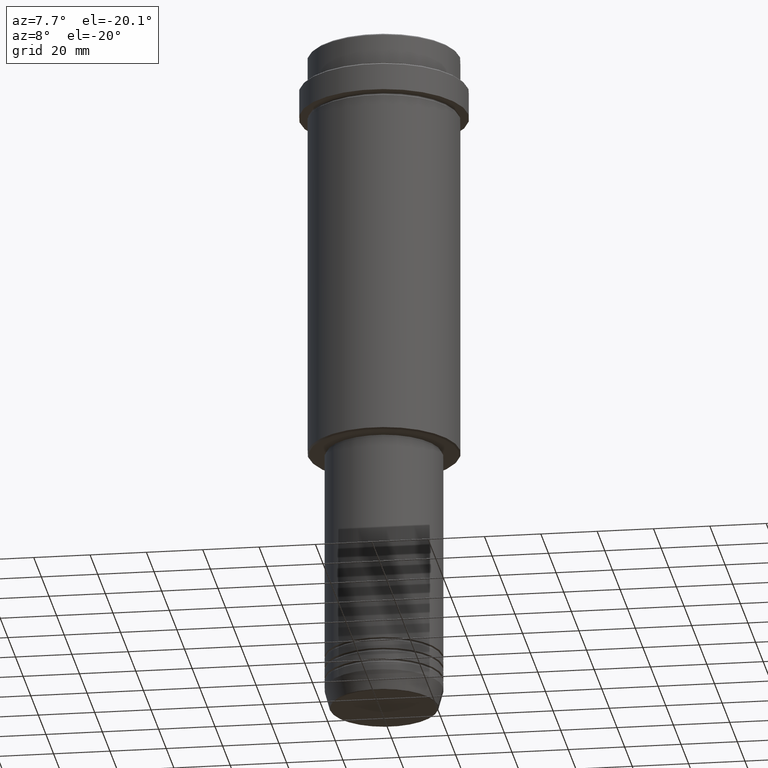
[diagram: clean part render]
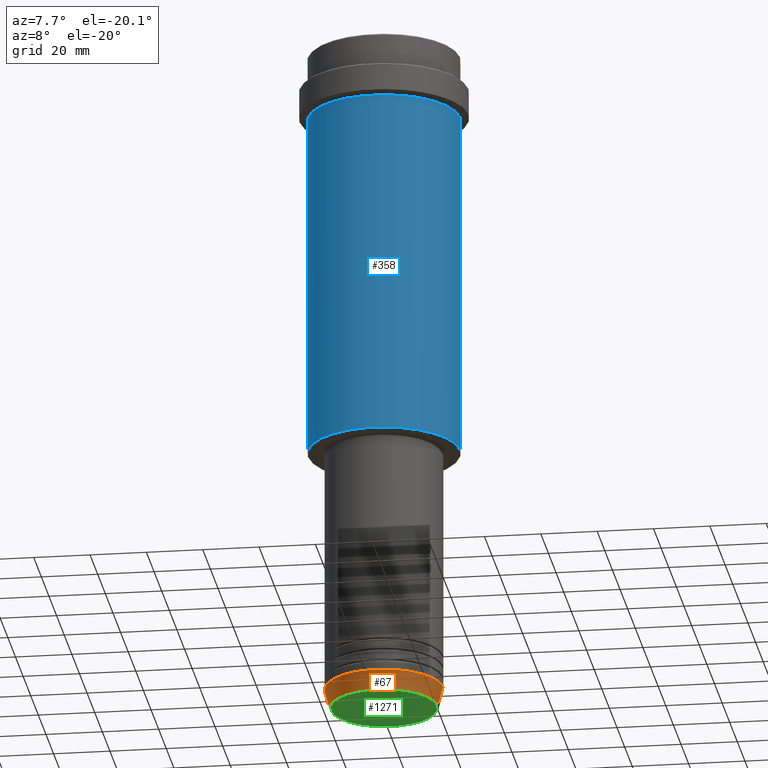
[diagram: same view with three faces highlighted in distinct colors, each labeled with its STEP entity id]
A machine part, auxiliary view with three faces highlighted in distinct colors.
Their STEP definitions:

[orange] entity #67 — the highlighted conical surface has half-angle 15 deg.
#21 = ORIENTED_EDGE ( 'NONE', *, *, #1041, .F. ) ;
#67 = ADVANCED_FACE ( 'NONE', ( #890 ), #712, .T. ) ;
#176 = VERTEX_POINT ( 'NONE', #1004 ) ;
#179 = EDGE_CURVE ( 'NONE', #1120, #1187, #1020, .T. ) ;
#184 = EDGE_LOOP ( 'NONE', ( #998, #1231, #1094, #21 ) ) ;
#288 = DIRECTION ( 'NONE',  ( 1.000000000000000000, 0.000000000000000000, 0.000000000000000000 ) ) ;
#395 = CARTESIAN_POINT ( 'NONE',  ( -21.00000000000000000, 2.571758278209441661E-15, -236.0000000000000284 ) ) ;
#410 = AXIS2_PLACEMENT_3D ( 'NONE', #1412, #418, #1204 ) ;
#418 = DIRECTION ( 'NONE',  ( -0.000000000000000000, -0.000000000000000000, 1.000000000000000000 ) ) ;
#463 = DIRECTION ( 'NONE',  ( 1.000000000000000000, 0.000000000000000000, 0.000000000000000000 ) ) ;
#466 = EDGE_CURVE ( 'NONE', #176, #1120, #1199, .T. ) ;
#473 = DIRECTION ( 'NONE',  ( 0.2588190451025213501, 0.000000000000000000, 0.9659258262890680902 ) ) ;
#612 = DIRECTION ( 'NONE',  ( -0.2588190451025213501, 3.169619151431772337E-17, 0.9659258262890680902 ) ) ;
#676 = DIRECTION ( 'NONE',  ( -0.000000000000000000, -0.000000000000000000, 1.000000000000000000 ) ) ;
#679 = CARTESIAN_POINT ( 'NONE',  ( 21.00000000000000000, 0.000000000000000000, -236.0000000000000284 ) ) ;
#712 = CONICAL_SURFACE ( 'NONE', #843, 21.00000000000000000, 0.2617993877991500740 ) ;
#809 = CIRCLE ( 'NONE', #410, 21.00000000000000000 ) ;
#843 = AXIS2_PLACEMENT_3D ( 'NONE', #1060, #1163, #288 ) ;
#890 = FACE_OUTER_BOUND ( 'NONE', #184, .T. ) ;
#993 = CARTESIAN_POINT ( 'NONE',  ( 19.22365507213718416, 0.000000000000000000, -242.6294095225512990 ) ) ;
#998 = ORIENTED_EDGE ( 'NONE', *, *, #1295, .F. ) ;
#1004 = CARTESIAN_POINT ( 'NONE',  ( -19.22365507213718416, 2.462988521705000261E-15, -242.6294095225512990 ) ) ;
#1020 = LINE ( 'NONE', #679, #1055 ) ;
#1024 = LINE ( 'NONE', #1252, #1056 ) ;
#1041 = EDGE_CURVE ( 'NONE', #1386, #1187, #809, .T. ) ;
#1055 = VECTOR ( 'NONE', #473, 1000.000000000000000 ) ;
#1056 = VECTOR ( 'NONE', #612, 1000.000000000000000 ) ;
#1060 = CARTESIAN_POINT ( 'NONE',  ( 0.000000000000000000, 0.000000000000000000, -236.0000000000000284 ) ) ;
#1094 = ORIENTED_EDGE ( 'NONE', *, *, #179, .T. ) ;
#1120 = VERTEX_POINT ( 'NONE', #993 ) ;
#1124 = CARTESIAN_POINT ( 'NONE',  ( 21.00000000000000000, 0.000000000000000000, -236.0000000000000284 ) ) ;
#1163 = DIRECTION ( 'NONE',  ( -0.000000000000000000, -0.000000000000000000, 1.000000000000000000 ) ) ;
#1187 = VERTEX_POINT ( 'NONE', #1124 ) ;
#1199 = CIRCLE ( 'NONE', #1244, 19.22365507213718416 ) ;
#1204 = DIRECTION ( 'NONE',  ( 1.000000000000000000, 0.000000000000000000, 0.000000000000000000 ) ) ;
#1221 = CARTESIAN_POINT ( 'NONE',  ( 0.000000000000000000, 0.000000000000000000, -242.6294095225512990 ) ) ;
#1231 = ORIENTED_EDGE ( 'NONE', *, *, #466, .T. ) ;
#1244 = AXIS2_PLACEMENT_3D ( 'NONE', #1221, #676, #463 ) ;
#1252 = CARTESIAN_POINT ( 'NONE',  ( -21.00000000000000000, 2.571758278209441661E-15, -236.0000000000000284 ) ) ;
#1295 = EDGE_CURVE ( 'NONE', #176, #1386, #1024, .T. ) ;
#1386 = VERTEX_POINT ( 'NONE', #395 ) ;
#1412 = CARTESIAN_POINT ( 'NONE',  ( 0.000000000000000000, 0.000000000000000000, -236.0000000000000284 ) ) ;

[blue] entity #358 — the highlighted cylindrical surface (partial cylindrical patch) has radius 27 mm, axis along (-0, -0, 1).
#20 = CARTESIAN_POINT ( 'NONE',  ( 0.000000000000000000, 0.000000000000000000, -147.5000000000000853 ) ) ;
#28 = FACE_OUTER_BOUND ( 'NONE', #970, .T. ) ;
#75 = ORIENTED_EDGE ( 'NONE', *, *, #1133, .F. ) ;
#102 = ORIENTED_EDGE ( 'NONE', *, *, #1286, .T. ) ;
#118 = CARTESIAN_POINT ( 'NONE',  ( -26.99999999999999645, 3.306546357697853339E-15, -23.00000000000000000 ) ) ;
#153 = DIRECTION ( 'NONE',  ( -0.000000000000000000, -0.000000000000000000, 1.000000000000000000 ) ) ;
#158 = EDGE_CURVE ( 'NONE', #751, #818, #1128, .T. ) ;
#177 = CARTESIAN_POINT ( 'NONE',  ( 26.99999999999999645, 0.000000000000000000, 0.000000000000000000 ) ) ;
#200 = CARTESIAN_POINT ( 'NONE',  ( 26.99999999999999645, 0.000000000000000000, -147.5000000000000853 ) ) ;
#238 = CIRCLE ( 'NONE', #624, 26.99999999999999645 ) ;
#358 = ADVANCED_FACE ( 'NONE', ( #28 ), #894, .T. ) ;
#362 = VERTEX_POINT ( 'NONE', #1217 ) ;
#408 = VECTOR ( 'NONE', #1190, 1000.000000000000000 ) ;
#419 = CARTESIAN_POINT ( 'NONE',  ( -26.99999999999999645, 3.306546357697853339E-15, 0.000000000000000000 ) ) ;
#521 = AXIS2_PLACEMENT_3D ( 'NONE', #549, #555, #776 ) ;
#536 = EDGE_CURVE ( 'NONE', #751, #1117, #1379, .T. ) ;
#549 = CARTESIAN_POINT ( 'NONE',  ( 0.000000000000000000, 0.000000000000000000, 0.000000000000000000 ) ) ;
#555 = DIRECTION ( 'NONE',  ( -0.000000000000000000, -0.000000000000000000, 1.000000000000000000 ) ) ;
#624 = AXIS2_PLACEMENT_3D ( 'NONE', #1130, #153, #1007 ) ;
#669 = VECTOR ( 'NONE', #1142, 1000.000000000000000 ) ;
#672 = DIRECTION ( 'NONE',  ( -1.000000000000000000, 0.000000000000000000, 0.000000000000000000 ) ) ;
#751 = VERTEX_POINT ( 'NONE', #1238 ) ;
#776 = DIRECTION ( 'NONE',  ( 1.000000000000000000, 0.000000000000000000, 0.000000000000000000 ) ) ;
#818 = VERTEX_POINT ( 'NONE', #200 ) ;
#865 = ORIENTED_EDGE ( 'NONE', *, *, #536, .F. ) ;
#888 = DIRECTION ( 'NONE',  ( -0.000000000000000000, -0.000000000000000000, 1.000000000000000000 ) ) ;
#894 = CYLINDRICAL_SURFACE ( 'NONE', #521, 26.99999999999999645 ) ;
#970 = EDGE_LOOP ( 'NONE', ( #865, #1123, #102, #75 ) ) ;
#1007 = DIRECTION ( 'NONE',  ( 1.000000000000000000, 0.000000000000000000, 0.000000000000000000 ) ) ;
#1117 = VERTEX_POINT ( 'NONE', #118 ) ;
#1123 = ORIENTED_EDGE ( 'NONE', *, *, #158, .T. ) ;
#1128 = CIRCLE ( 'NONE', #1285, 26.99999999999999645 ) ;
#1130 = CARTESIAN_POINT ( 'NONE',  ( 0.000000000000000000, 0.000000000000000000, -23.00000000000000000 ) ) ;
#1133 = EDGE_CURVE ( 'NONE', #1117, #362, #238, .T. ) ;
#1142 = DIRECTION ( 'NONE',  ( -0.000000000000000000, -0.000000000000000000, 1.000000000000000000 ) ) ;
#1157 = LINE ( 'NONE', #177, #669 ) ;
#1190 = DIRECTION ( 'NONE',  ( -0.000000000000000000, -0.000000000000000000, 1.000000000000000000 ) ) ;
#1217 = CARTESIAN_POINT ( 'NONE',  ( 26.99999999999999645, 0.000000000000000000, -23.00000000000000000 ) ) ;
#1238 = CARTESIAN_POINT ( 'NONE',  ( -26.99999999999999645, 3.306546357697853339E-15, -147.5000000000000853 ) ) ;
#1285 = AXIS2_PLACEMENT_3D ( 'NONE', #20, #888, #672 ) ;
#1286 = EDGE_CURVE ( 'NONE', #818, #362, #1157, .T. ) ;
#1379 = LINE ( 'NONE', #419, #408 ) ;

[green] entity #1271 — the highlighted planar face has unit normal (0, -0, 1).
#61 = AXIS2_PLACEMENT_3D ( 'NONE', #282, #1357, #1263 ) ;
#68 = FACE_OUTER_BOUND ( 'NONE', #336, .T. ) ;
#117 = VERTEX_POINT ( 'NONE', #844 ) ;
#282 = CARTESIAN_POINT ( 'NONE',  ( 0.000000000000000000, 0.000000000000000000, -243.0000000000000284 ) ) ;
#336 = EDGE_LOOP ( 'NONE', ( #641, #1066 ) ) ;
#389 = PLANE ( 'NONE',  #61 ) ;
#406 = CIRCLE ( 'NONE', #896, 18.74069215899265473 ) ;
#416 = CARTESIAN_POINT ( 'NONE',  ( 0.000000000000000000, 0.000000000000000000, -243.0000000000000284 ) ) ;
#454 = EDGE_CURVE ( 'NONE', #117, #754, #406, .T. ) ;
#471 = DIRECTION ( 'NONE',  ( 0.000000000000000000, 0.000000000000000000, -1.000000000000000000 ) ) ;
#482 = CIRCLE ( 'NONE', #1059, 18.74069215899265473 ) ;
#514 = DIRECTION ( 'NONE',  ( 1.000000000000000000, 0.000000000000000000, 0.000000000000000000 ) ) ;
#531 = DIRECTION ( 'NONE',  ( 0.000000000000000000, 0.000000000000000000, -1.000000000000000000 ) ) ;
#614 = EDGE_CURVE ( 'NONE', #754, #117, #482, .T. ) ;
#641 = ORIENTED_EDGE ( 'NONE', *, *, #614, .T. ) ;
#754 = VERTEX_POINT ( 'NONE', #1259 ) ;
#844 = CARTESIAN_POINT ( 'NONE',  ( -18.74069215899265473, 2.324645815916091924E-15, -243.0000000000000284 ) ) ;
#885 = DIRECTION ( 'NONE',  ( 1.000000000000000000, 0.000000000000000000, 0.000000000000000000 ) ) ;
#896 = AXIS2_PLACEMENT_3D ( 'NONE', #416, #531, #514 ) ;
#1059 = AXIS2_PLACEMENT_3D ( 'NONE', #1233, #471, #885 ) ;
#1066 = ORIENTED_EDGE ( 'NONE', *, *, #454, .T. ) ;
#1233 = CARTESIAN_POINT ( 'NONE',  ( 0.000000000000000000, 0.000000000000000000, -243.0000000000000284 ) ) ;
#1259 = CARTESIAN_POINT ( 'NONE',  ( 18.74069215899265473, 0.000000000000000000, -243.0000000000000284 ) ) ;
#1263 = DIRECTION ( 'NONE',  ( 1.000000000000000000, 0.000000000000000000, 0.000000000000000000 ) ) ;
#1271 = ADVANCED_FACE ( 'NONE', ( #68 ), #389, .F. ) ;
#1357 = DIRECTION ( 'NONE',  ( 0.000000000000000000, -0.000000000000000000, 1.000000000000000000 ) ) ;